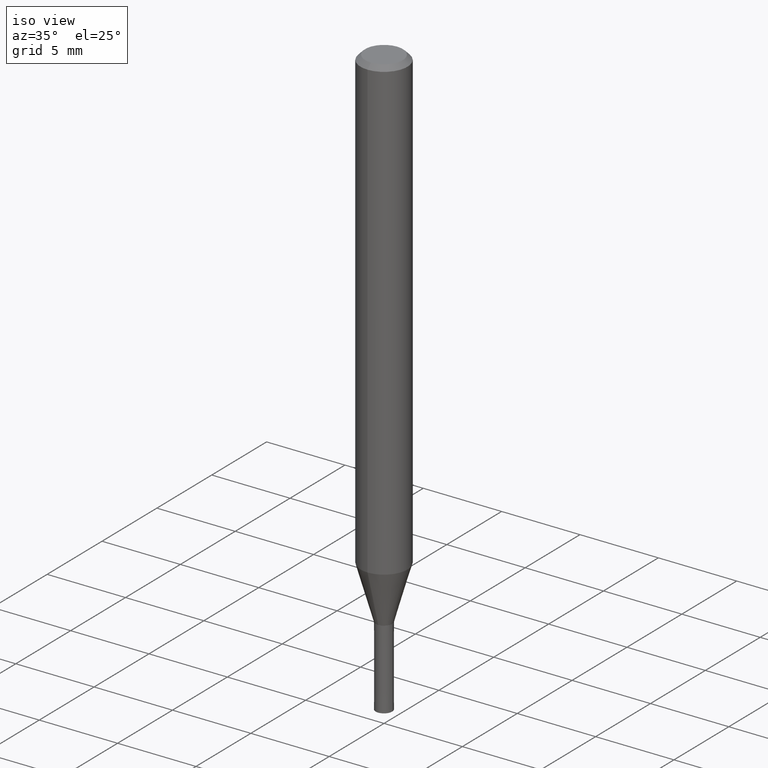
[diagram: clean part render]
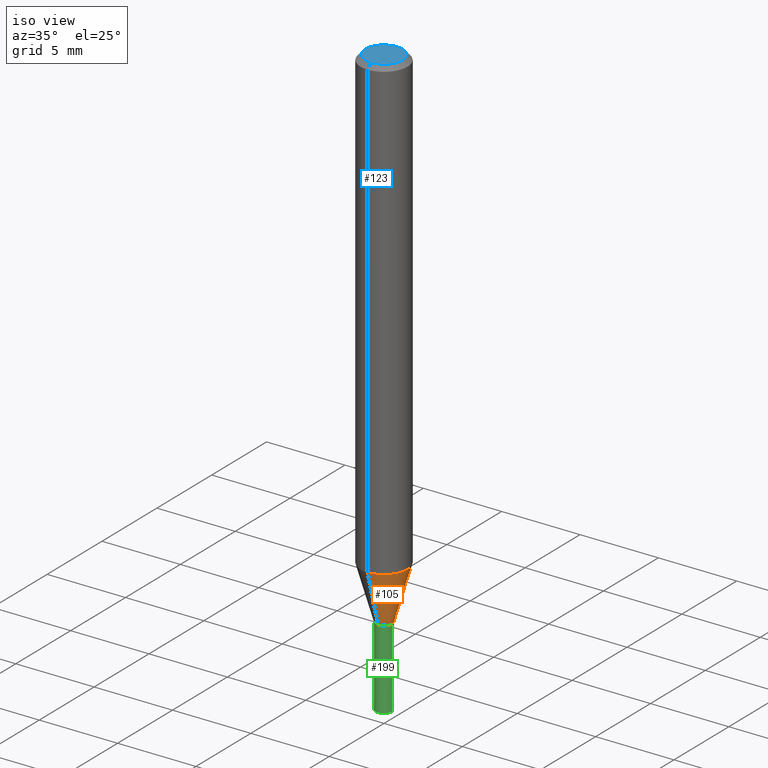
[diagram: same view with three faces highlighted in distinct colors, each labeled with its STEP entity id]
A machine part, iso view with three faces highlighted in distinct colors.
Their STEP definitions:

[orange] entity #105 — the highlighted conical surface has half-angle 16.005 deg.
#105=ADVANCED_FACE('',(#242),#243,.T.);
#133=VERTEX_POINT('',#275);
#139=VERTEX_POINT('',#282);
#157=EDGE_CURVE('',#139,#171,#302,.T.);
#167=EDGE_CURVE('',#201,#133,#314,.T.);
#171=VERTEX_POINT('',#318);
#175=EDGE_CURVE('',#133,#171,#322,.T.);
#201=VERTEX_POINT('',#351);
#205=EDGE_CURVE('',#139,#201,#355,.T.);
#242=FACE_OUTER_BOUND('',#387,.T.);
#243=CONICAL_SURFACE('',#388,1.0125,0.279338040987867);
#275=CARTESIAN_POINT('',(6.42918335756748E-017,-0.525,-32.6991339745962));
#282=CARTESIAN_POINT('',(0.0,1.5,-29.3));
#302=CIRCLE('',#463,1.5);
#314=CIRCLE('',#478,0.525);
#318=CARTESIAN_POINT('',(1.83690953073357E-016,-1.5,-29.3));
#322=LINE('',#487,#488);
#351=CARTESIAN_POINT('',(0.0,0.525,-32.6991339745962));
#355=LINE('',#532,#533);
#387=EDGE_LOOP('',(#555,#556,#557,#558));
#388=AXIS2_PLACEMENT_3D('',#559,#560,#561);
#463=AXIS2_PLACEMENT_3D('',#632,#633,#634);
#478=AXIS2_PLACEMENT_3D('',#655,#656,#657);
#487=CARTESIAN_POINT('',(1.23991393324516E-016,-1.0125,-30.9995669872981));
#488=VECTOR('',#658,1.0);
#532=CARTESIAN_POINT('',(-1.23991393324516E-016,1.0125,-30.9995669872981));
#533=VECTOR('',#702,1.0);
#555=ORIENTED_EDGE('',*,*,#205,.F.);
#556=ORIENTED_EDGE('',*,*,#157,.T.);
#557=ORIENTED_EDGE('',*,*,#175,.F.);
#558=ORIENTED_EDGE('',*,*,#167,.F.);
#559=CARTESIAN_POINT('',(0.0,0.0,-30.9995669872981));
#560=DIRECTION('',(-0.0,-0.0,1.0));
#561=DIRECTION('',(0.0,1.0,0.0));
#632=CARTESIAN_POINT('',(0.0,0.0,-29.3));
#633=DIRECTION('',(0.0,0.0,-1.0));
#634=DIRECTION('',(0.0,1.0,0.0));
#655=CARTESIAN_POINT('',(0.0,0.0,-32.6991339745962));
#656=DIRECTION('',(0.0,0.0,-1.0));
#657=DIRECTION('',(0.0,1.0,0.0));
#658=DIRECTION('',(3.37647739832205E-017,-0.275719408753924,0.961238163847226));
#702=DIRECTION('',(3.37647739832205E-017,-0.275719408753924,-0.961238163847226));

[blue] entity #123 — the highlighted planar face has unit normal (-0, 0, 1).
#93=VERTEX_POINT('',#228);
#123=ADVANCED_FACE('',(#264),#265,.T.);
#137=EDGE_CURVE('',#93,#169,#280,.T.);
#169=VERTEX_POINT('',#316);
#193=EDGE_CURVE('',#169,#93,#341,.T.);
#228=CARTESIAN_POINT('',(0.0,1.2,0.0));
#264=FACE_OUTER_BOUND('',#417,.T.);
#265=PLANE('',#418);
#280=CIRCLE('',#435,1.2);
#316=CARTESIAN_POINT('',(1.46952762458685E-016,-1.2,0.0));
#341=CIRCLE('',#516,1.2);
#417=EDGE_LOOP('',(#593,#594));
#418=AXIS2_PLACEMENT_3D('',#595,#596,#597);
#435=AXIS2_PLACEMENT_3D('',#608,#609,#610);
#516=AXIS2_PLACEMENT_3D('',#680,#681,#682);
#593=ORIENTED_EDGE('',*,*,#137,.F.);
#594=ORIENTED_EDGE('',*,*,#193,.F.);
#595=CARTESIAN_POINT('',(0.0,0.6,0.0));
#596=DIRECTION('',(-0.0,0.0,1.0));
#597=DIRECTION('',(0.0,-1.0,0.0));
#608=CARTESIAN_POINT('',(0.0,0.0,0.0));
#609=DIRECTION('',(0.0,0.0,-1.0));
#610=DIRECTION('',(0.0,1.0,0.0));
#680=CARTESIAN_POINT('',(0.0,0.0,0.0));
#681=DIRECTION('',(0.0,0.0,-1.0));
#682=DIRECTION('',(0.0,1.0,0.0));

[green] entity #199 — the highlighted conical surface has half-angle 0.011 deg.
#97=VERTEX_POINT('',#233);
#129=VERTEX_POINT('',#271);
#147=VERTEX_POINT('',#292);
#155=EDGE_CURVE('',#97,#173,#300,.T.);
#159=EDGE_CURVE('',#129,#97,#304,.T.);
#173=VERTEX_POINT('',#320);
#177=EDGE_CURVE('',#147,#129,#324,.T.);
#179=EDGE_CURVE('',#147,#173,#326,.T.);
#199=ADVANCED_FACE('',(#348),#349,.T.);
#233=CARTESIAN_POINT('',(-0.526,0.0,-32.7));
#271=CARTESIAN_POINT('',(0.526,6.4414294211057E-017,-32.7));
#292=CARTESIAN_POINT('',(0.525,6.42918335756748E-017,-37.75518848));
#300=LINE('',#459,#460);
#304=CIRCLE('',#466,0.526);
#320=CARTESIAN_POINT('',(-0.525,0.0,-37.75518848));
#324=LINE('',#491,#492);
#326=CIRCLE('',#495,0.525);
#348=FACE_OUTER_BOUND('',#524,.T.);
#349=CONICAL_SURFACE('',#525,0.5255,0.000197816558356337);
#459=CARTESIAN_POINT('',(-0.5255,-6.43530638933659E-017,-35.22759424));
#460=VECTOR('',#631,1.0);
#466=AXIS2_PLACEMENT_3D('',#635,#636,#637);
#491=CARTESIAN_POINT('',(0.5255,6.43530638933659E-017,-35.22759424));
#492=VECTOR('',#659,1.0);
#495=AXIS2_PLACEMENT_3D('',#660,#661,#662);
#524=EDGE_LOOP('',(#695,#696,#697,#698));
#525=AXIS2_PLACEMENT_3D('',#699,#700,#701);
#631=DIRECTION('',(0.000197816557066198,2.42247412674533E-020,-0.999999980434305));
#635=CARTESIAN_POINT('',(0.0,0.0,-32.7));
#636=DIRECTION('',(0.0,0.0,-1.0));
#637=DIRECTION('',(-1.0,0.0,0.0));
#659=DIRECTION('',(0.000197816557066198,2.42247412674533E-020,0.999999980434305));
#660=CARTESIAN_POINT('',(0.0,0.0,-37.75518848));
#661=DIRECTION('',(0.0,0.0,-1.0));
#662=DIRECTION('',(-1.0,0.0,0.0));
#695=ORIENTED_EDGE('',*,*,#155,.T.);
#696=ORIENTED_EDGE('',*,*,#179,.F.);
#697=ORIENTED_EDGE('',*,*,#177,.T.);
#698=ORIENTED_EDGE('',*,*,#159,.T.);
#699=CARTESIAN_POINT('',(0.0,0.0,-35.22759424));
#700=DIRECTION('',(-0.0,-0.0,1.0));
#701=DIRECTION('',(-1.0,0.0,0.0));